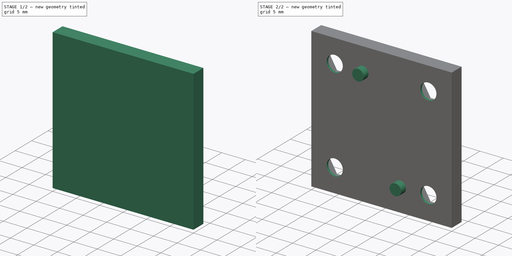
[diagram: build sequence overview — one tinted view per stage of 2, left to right]
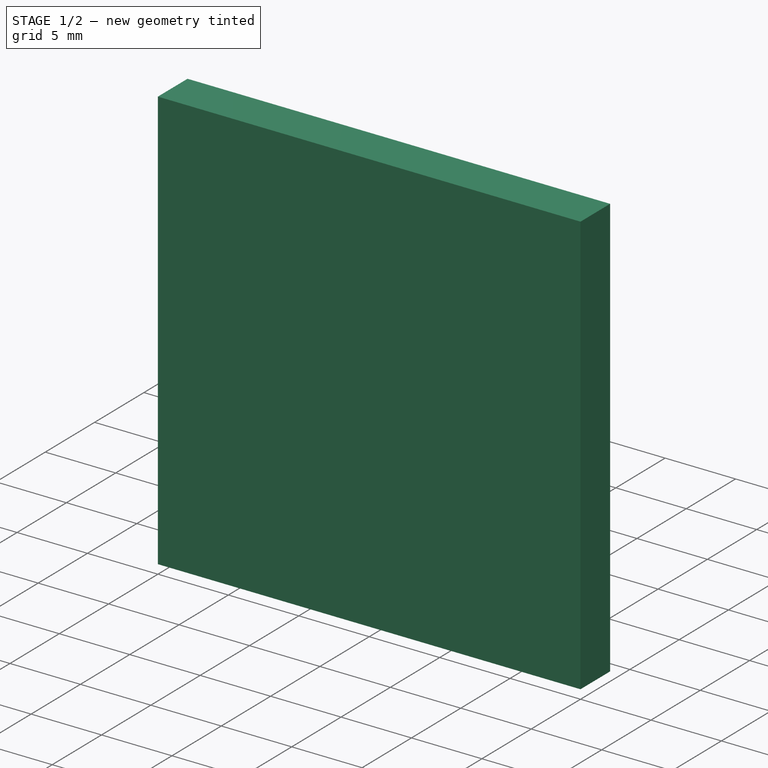
[diagram: stage 1 of 2 — iso view after this stage's code; geometry added in this stage tinted green]
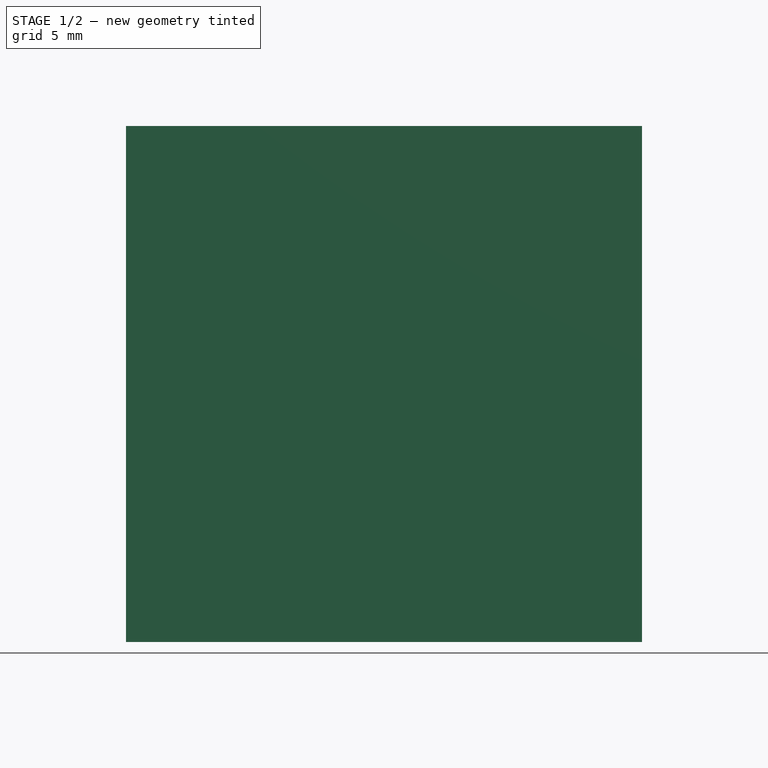
[diagram: stage 1 of 2 — front view after this stage's code; geometry added in this stage tinted green]
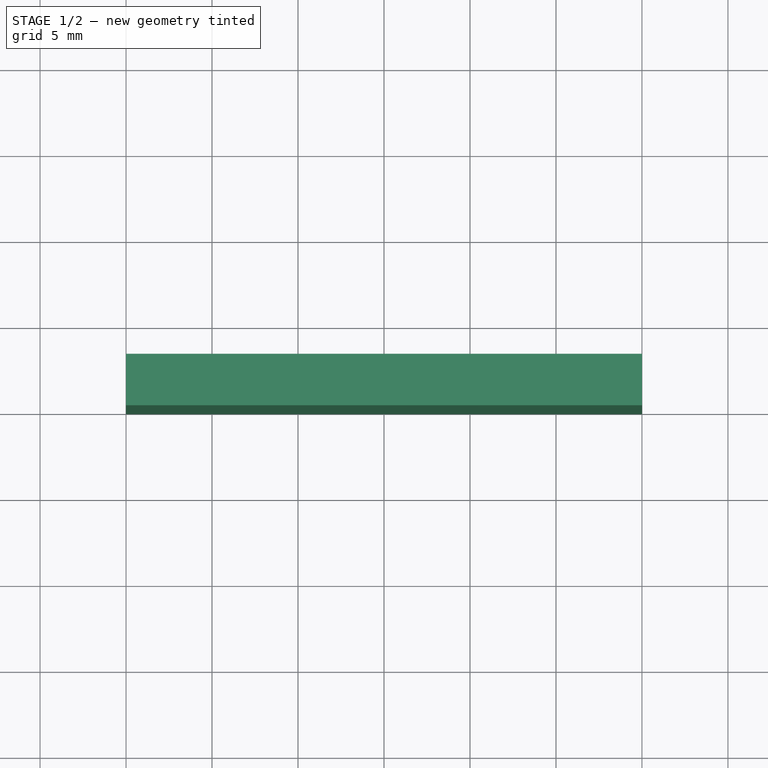
[diagram: stage 1 of 2 — top view after this stage's code; geometry added in this stage tinted green]
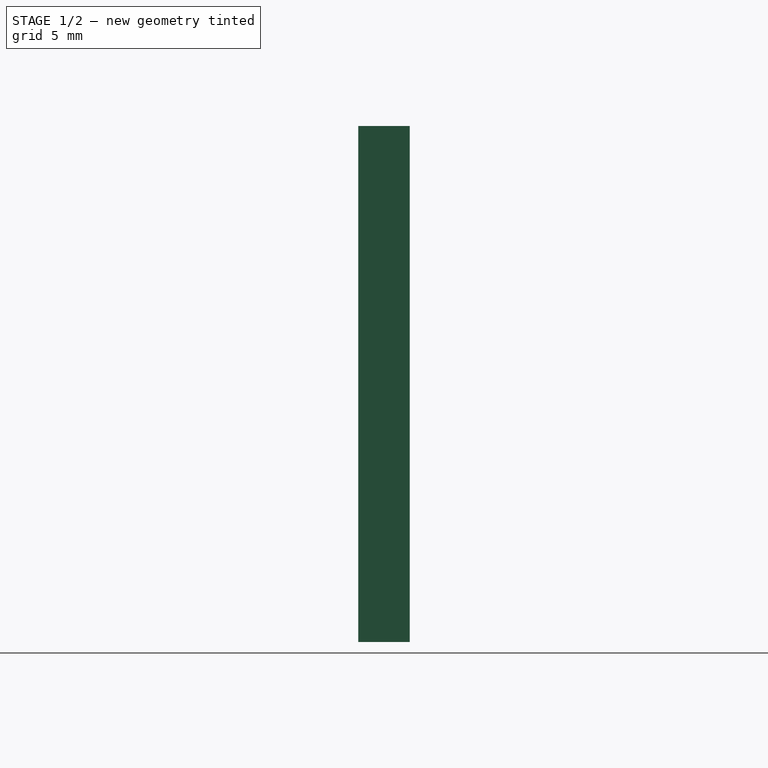
[diagram: stage 1 of 2 — right view after this stage's code; geometry added in this stage tinted green]
FCSTD DOCUMENT  (FreeCAD 0.18.4R)
Label: backplate
License: All rights reserved
LicenseURL: http://en.wikipedia.org/wiki/All_rights_reserved
objects: Sketcher::SketchObject×4, PartDesign::Pad×2, PartDesign::Pocket×2, PartDesign::Body×1
note: 13 computed .brp shape members not serialized (recipe doc carries the construction recipe); baked Part::Feature solids carry a one-line shape summary decoded from their .brp

FEATURE [Sketcher::SketchObject] Sketch
  MapMode = 5
  Placement = pos=(0,0,0) rot=(1,0,0;1.5708rad)
  Support = -> [XZ_Plane]
  sketch-geometry (4):
    g0: LineSegment StartX=-15 StartY=15 StartZ=0 EndX=15 EndY=15 EndZ=0
    g1: LineSegment StartX=15 StartY=15 StartZ=0 EndX=15 EndY=-15 EndZ=0
    g2: LineSegment StartX=15 StartY=-15 StartZ=0 EndX=-15 EndY=-15 EndZ=0
    g3: LineSegment StartX=-15 StartY=-15 StartZ=0 EndX=-15 EndY=15 EndZ=0
  constraints (12):
    c: Coincident(g0,g1)
    c: Coincident(g1,g2)
    c: Coincident(g2,g3)
    c: Coincident(g3,g0)
    c: Horizontal(g0)
    c: Horizontal(g2)
    c: Vertical(g1)
    c: Vertical(g3)
    c: DistanceY(g1,g1) = 30
    c: DistanceX(g0,g0) = 30
    c: Distance(g-1,g1) = 15
    c: Distance(g-1,g0) = 15
FEATURE [PartDesign::Pad] Pad
  Length = 3
  Length2 = 100
  Placement = pos=(0,0,0) rot=(1,0,0;1.5708rad)
  Profile = -> Sketch
  Reversed = true
  Type = 0
FEATURE [Sketcher::SketchObject] Sketch001
  MapMode = 5
  Placement = pos=(0,3,-2e-15) rot=(-1,0,0;1.5708rad)
  Support = -> [Pad]
  sketch-geometry (28):
    g0: LineSegment StartX=-11.6166 StartY=7.2 StartZ=0 EndX=-8.38342 EndY=7.2 EndZ=0
    g1: LineSegment StartX=-8.38342 StartY=7.2 StartZ=0 EndX=-6.76684 EndY=10 EndZ=0
    g2: LineSegment StartX=-6.76684 StartY=10 StartZ=0 EndX=-8.38342 EndY=12.8 EndZ=0
    g3: LineSegment StartX=-8.38342 StartY=12.8 StartZ=0 EndX=-11.6166 EndY=12.8 EndZ=0
    g4: LineSegment StartX=-11.6166 StartY=12.8 StartZ=0 EndX=-13.2332 EndY=10 EndZ=0
    g5: LineSegment StartX=-13.2332 StartY=10 StartZ=0 EndX=-11.6166 EndY=7.2 EndZ=0
    g6: Circle [constr] CenterX=-10 CenterY=10 CenterZ=0 NormalX=0 NormalY=0 NormalZ=1 AngleXU=0 Radius=3.23316
    g7: LineSegment StartX=11.6166 StartY=7.2 StartZ=0 EndX=13.2332 EndY=10 EndZ=0
    g8: LineSegment StartX=13.2332 StartY=10 StartZ=0 EndX=11.6166 EndY=12.8 EndZ=0
    g9: LineSegment StartX=11.6166 StartY=12.8 StartZ=0 EndX=8.38342 EndY=12.8 EndZ=0
    g10: LineSegment StartX=8.38342 StartY=12.8 StartZ=0 EndX=6.76684 EndY=10 EndZ=0
    g11: LineSegment StartX=6.76684 StartY=10 StartZ=0 EndX=8.38342 EndY=7.2 EndZ=0
    g12: LineSegment StartX=8.38342 StartY=7.2 StartZ=0 EndX=11.6166 EndY=7.2 EndZ=0
    g13: Circle [constr] CenterX=10 CenterY=10 CenterZ=0 NormalX=0 NormalY=0 NormalZ=1 AngleXU=0 Radius=3.23316
    g14: LineSegment StartX=11.6166 StartY=-12.8 StartZ=0 EndX=13.2332 EndY=-10 EndZ=0
    g15: LineSegment StartX=13.2332 StartY=-10 StartZ=0 EndX=11.6166 EndY=-7.2 EndZ=0
    g16: LineSegment StartX=11.6166 StartY=-7.2 StartZ=0 EndX=8.38342 EndY=-7.2 EndZ=0
    g17: LineSegment StartX=8.38342 StartY=-7.2 StartZ=0 EndX=6.76684 EndY=-10 EndZ=0
    g18: LineSegment StartX=6.76684 StartY=-10 StartZ=0 EndX=8.38342 EndY=-12.8 EndZ=0
    g19: LineSegment StartX=8.38342 StartY=-12.8 StartZ=0 EndX=11.6166 EndY=-12.8 EndZ=0
    g20: Circle [constr] CenterX=10 CenterY=-10 CenterZ=0 NormalX=0 NormalY=0 NormalZ=1 AngleXU=0 Radius=3.23316
    g21: LineSegment StartX=-8.38342 StartY=-7.2 StartZ=0 EndX=-11.6166 EndY=-7.2 EndZ=0
    g22: LineSegment StartX=-11.6166 StartY=-7.2 StartZ=0 EndX=-13.2332 EndY=-10 EndZ=0
    g23: LineSegment StartX=-13.2332 StartY=-10 StartZ=0 EndX=-11.6166 EndY=-12.8 EndZ=0
    g24: LineSegment StartX=-11.6166 StartY=-12.8 StartZ=0 EndX=-8.38342 EndY=-12.8 EndZ=0
    g25: LineSegment StartX=-8.38342 StartY=-12.8 StartZ=0 EndX=-6.76684 EndY=-10 EndZ=0
    g26: LineSegment StartX=-6.76684 StartY=-10 StartZ=0 EndX=-8.38342 EndY=-7.2 EndZ=0
    g27: Circle [constr] CenterX=-10 CenterY=-10 CenterZ=0 NormalX=0 NormalY=0 NormalZ=1 AngleXU=0 Radius=3.23316
  constraints (68):
    c: Coincident(g0,g1)
    c: Coincident(g1,g2)
    c: Coincident(g2,g3)
    c: Coincident(g3,g4)
    c: Coincident(g4,g5)
    c: Coincident(g5,g0)
    c: Equal(g0, g1-g5) x5
    c: PointOnObject(g0,g6)
    c: PointOnObject(g1,g6)
    c: PointOnObject(g2,g6)
    c: PointOnObject(g3,g6)
    c: PointOnObject(g4,g6)
    c: PointOnObject(g5,g6)
    c: Parallel(g0,g-1)
    c: DistanceY(g-1,g6) = 10
    c: DistanceX(g-2,g6) = -10
    c: Distance(g2,g4) = 5.6
    c: Coincident(g7,g8)
    c: Coincident(g8,g9)
    c: Coincident(g9,g10)
    c: Coincident(g10,g11)
    c: Coincident(g11,g12)
    c: Coincident(g12,g7)
    c: Equal(g7, g8-g12) x5
    c: PointOnObject(g7,g13)
    c: PointOnObject(g8,g13)
    c: PointOnObject(g9,g13)
    c: PointOnObject(g10,g13)
    c: PointOnObject(g11,g13)
    c: PointOnObject(g12,g13)
    c: Parallel(g12,g-1)
    c: Distance(g10,g8) = 5.6
    c: DistanceX(g-2,g13) = 10
    c: DistanceY(g-1,g13) = 10
    c: Coincident(g14,g15)
    c: Coincident(g15,g16)
    c: Coincident(g16,g17)
    c: Coincident(g17,g18)
    c: Coincident(g18,g19)
    c: Coincident(g19,g14)
    c: Equal(g14, g15-g19) x5
    c: PointOnObject(g14,g20)
    c: PointOnObject(g15,g20)
    c: PointOnObject(g16,g20)
    c: PointOnObject(g17,g20)
    c: PointOnObject(g18,g20)
    c: PointOnObject(g19,g20)
    c: Parallel(g16,g-1)
    c: DistanceY(g-1,g20) = -10
    c: DistanceX(g-2,g20) = 10
    c: Distance(g17,g15) = 5.6
    c: Coincident(g21,g22)
    c: Coincident(g22,g23)
    c: Coincident(g23,g24)
    c: Coincident(g24,g25)
    c: Coincident(g25,g26)
    c: Coincident(g26,g21)
    c: Equal(g21, g22-g26) x5
    c: PointOnObject(g21,g27)
    c: PointOnObject(g22,g27)
    c: PointOnObject(g23,g27)
    c: PointOnObject(g24,g27)
    c: PointOnObject(g25,g27)
    c: PointOnObject(g26,g27)
    c: Parallel(g21,g-1)
    c: DistanceY(g-1,g27) = -10
    c: DistanceX(g-2,g27) = -10
    c: Distance(g22,g21) = 5.6
FEATURE [PartDesign::Pocket] Pocket
  BaseFeature = -> Pad
  Length = 2.5
  Length2 = 100
  Placement = pos=(0,0,0) rot=(1,0,0;1.5708rad)
  Profile = -> Sketch001
  Type = 0
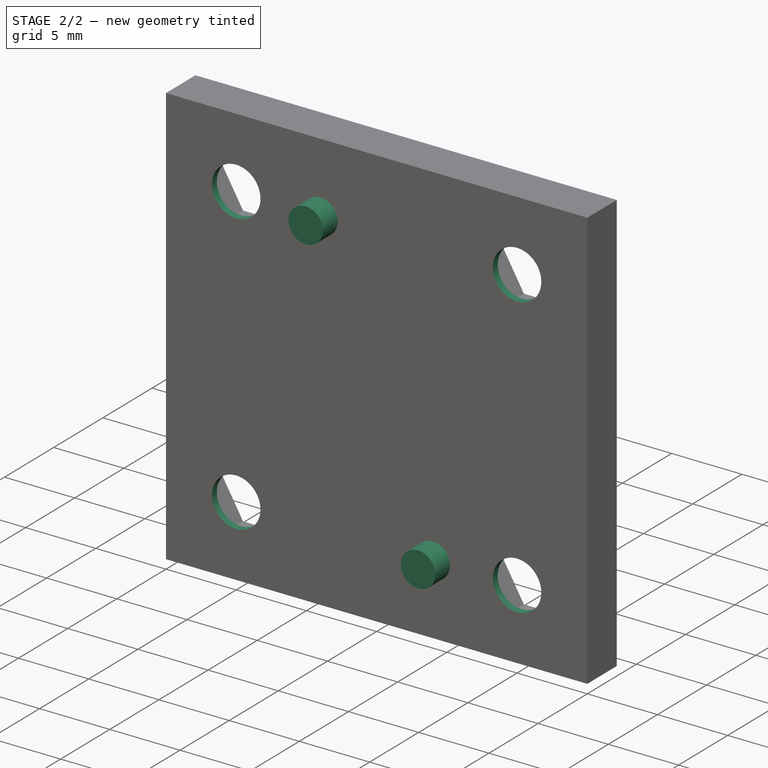
[diagram: stage 2 of 2 — iso view after this stage's code; geometry added in this stage tinted green]
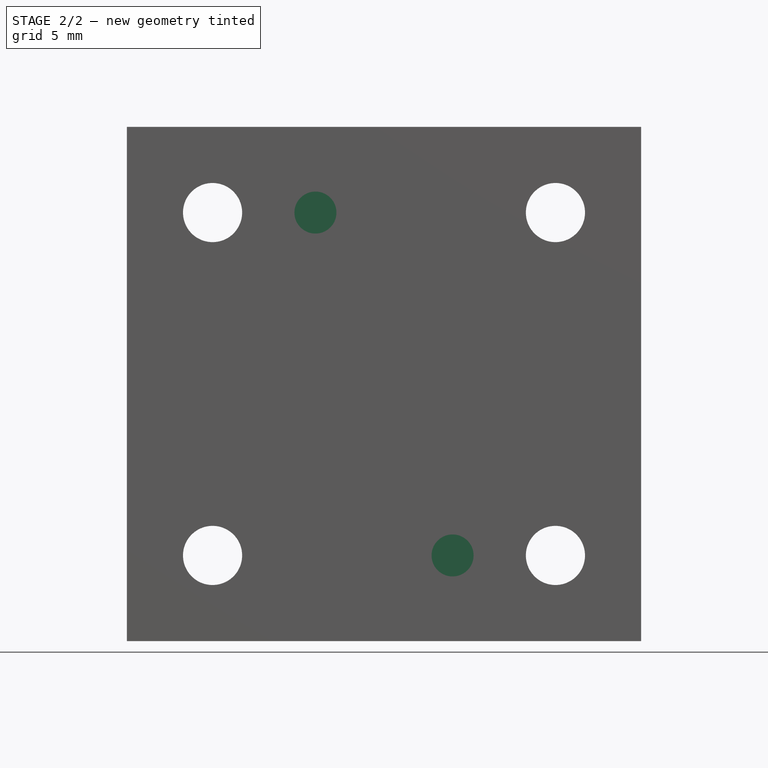
[diagram: stage 2 of 2 — front view after this stage's code; geometry added in this stage tinted green]
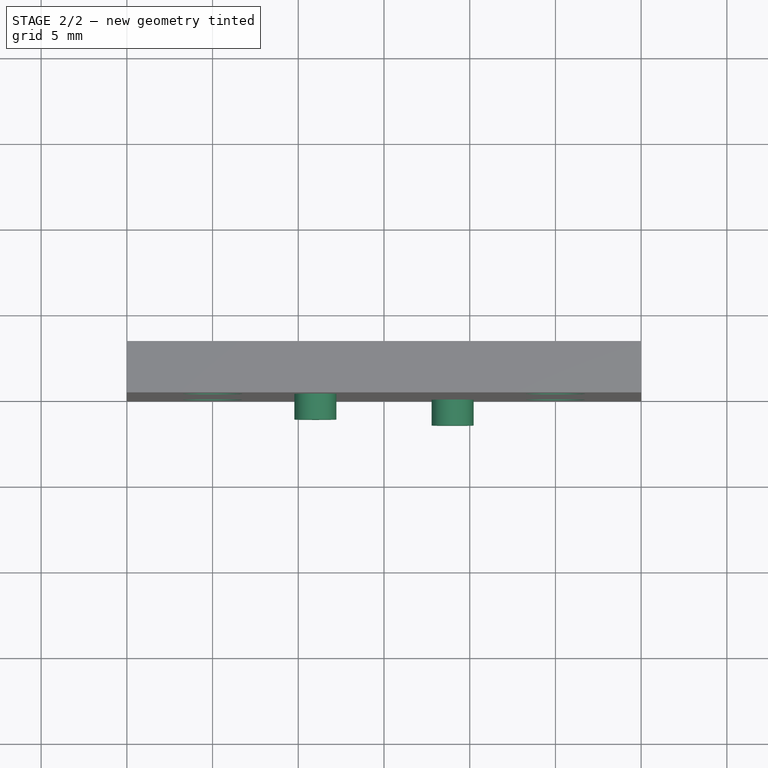
[diagram: stage 2 of 2 — top view after this stage's code; geometry added in this stage tinted green]
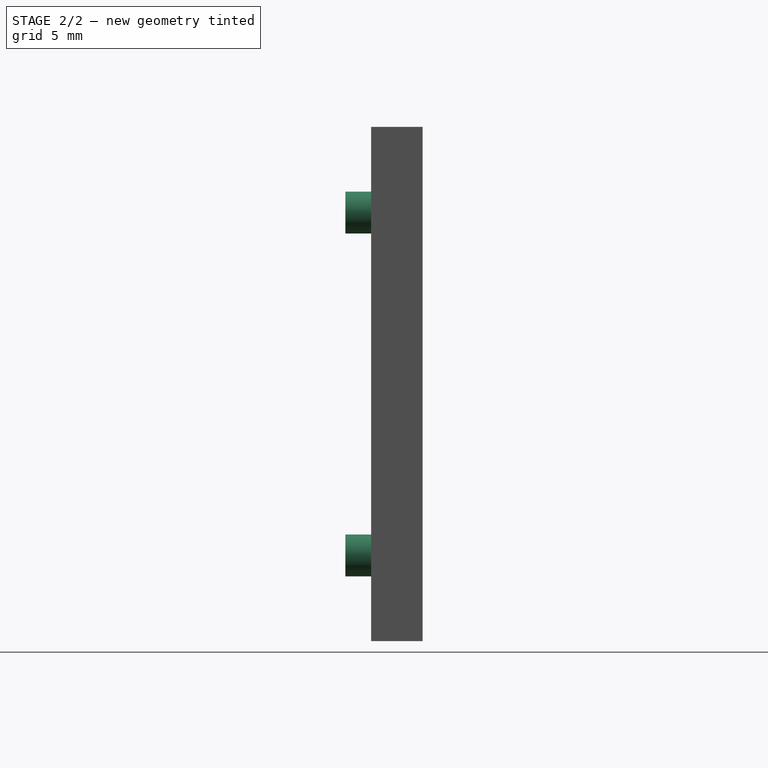
[diagram: stage 2 of 2 — right view after this stage's code; geometry added in this stage tinted green]
FEATURE [Sketcher::SketchObject] Sketch002
  MapMode = 5
  Placement = pos=(0,0.5,-5e-16) rot=(-1,0,0;1.5708rad)
  Support = -> [Pocket]
  sketch-geometry (4):
    g0: Circle CenterX=-10 CenterY=10 CenterZ=0 NormalX=0 NormalY=0 NormalZ=1 AngleXU=0 Radius=1.725
    g1: Circle CenterX=10 CenterY=10 CenterZ=0 NormalX=0 NormalY=0 NormalZ=1 AngleXU=0 Radius=1.725
    g2: Circle CenterX=10 CenterY=-10 CenterZ=0 NormalX=0 NormalY=0 NormalZ=1 AngleXU=0 Radius=1.725
    g3: Circle CenterX=-10 CenterY=-10 CenterZ=0 NormalX=0 NormalY=0 NormalZ=1 AngleXU=0 Radius=1.725
  constraints (12):
    c: DistanceY(g-1,g0) = 10
    c: DistanceX(g-2,g0) = -10
    c: Diameter(g0) = 3.45
    c: DistanceX(g-2,g1) = 10
    c: DistanceY(g-1,g1) = 10
    c: Diameter(g1) = 3.45
    c: DistanceY(g-1,g2) = -10
    c: DistanceX(g-2,g2) = 10
    c: Diameter(g2) = 3.45
    c: DistanceX(g-2,g3) = -10
    c: DistanceY(g-1,g3) = -10
    c: Diameter(g3) = 3.45
FEATURE [PartDesign::Pocket] Pocket001
  BaseFeature = -> Pocket
  Length = 5
  Length2 = 100
  Placement = pos=(0,0,0) rot=(1,0,0;1.5708rad)
  Profile = -> Sketch002
  Type = 0
FEATURE [Sketcher::SketchObject] Sketch003
  MapMode = 5
  Placement = pos=(0,0,0) rot=(1,0,0;1.5708rad)
  Support = -> [Pocket001]
  sketch-geometry (2):
    g0: Circle CenterX=4 CenterY=-10 CenterZ=0 NormalX=0 NormalY=0 NormalZ=1 AngleXU=0 Radius=1.225
    g1: Circle CenterX=-4 CenterY=10 CenterZ=0 NormalX=0 NormalY=0 NormalZ=1 AngleXU=0 Radius=1.225
  constraints (6):
    c: DistanceX(g-2,g0) = 4
    c: DistanceY(g-1,g0) = -10
    c: Diameter(g0) = 2.45
    c: DistanceX(g-2,g1) = -4
    c: DistanceY(g-1,g1) = 10
    c: Diameter(g1) = 2.45
FEATURE [PartDesign::Pad] Pad001
  BaseFeature = -> Pocket001
  Length = 1.5
  Length2 = 100
  Placement = pos=(0,0,0) rot=(1,0,0;1.5708rad)
  Profile = -> Sketch003
  Type = 0
FEATURE [PartDesign::Body] Body
  Group = -> [Sketch,Pad,Sketch001,Pocket,Sketch002,Pocket001,Sketch003,Pad001]
  Origin = -> Origin
  Tip = -> Pad001
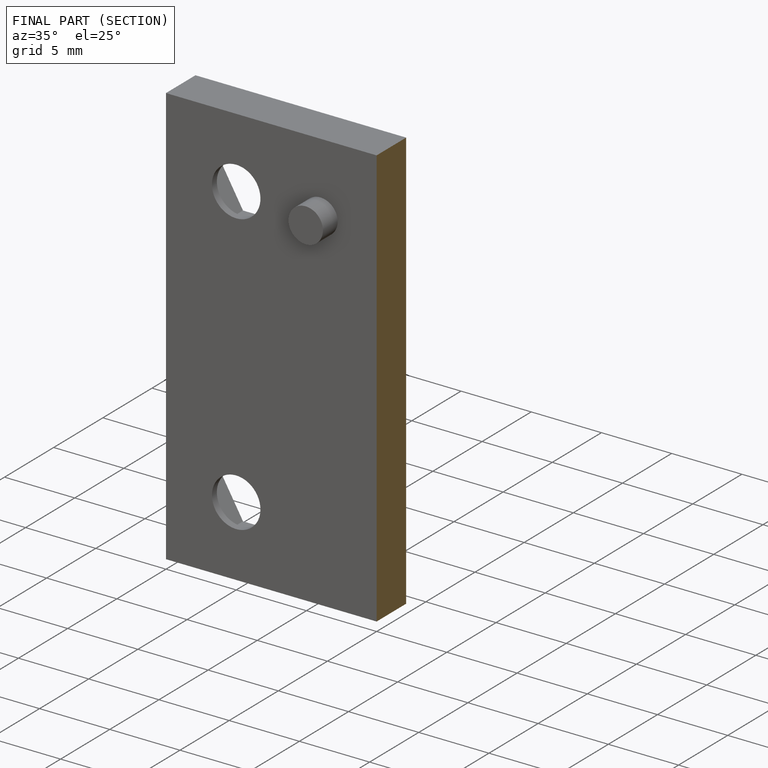
[diagram: finished part — half-section view (interior)]
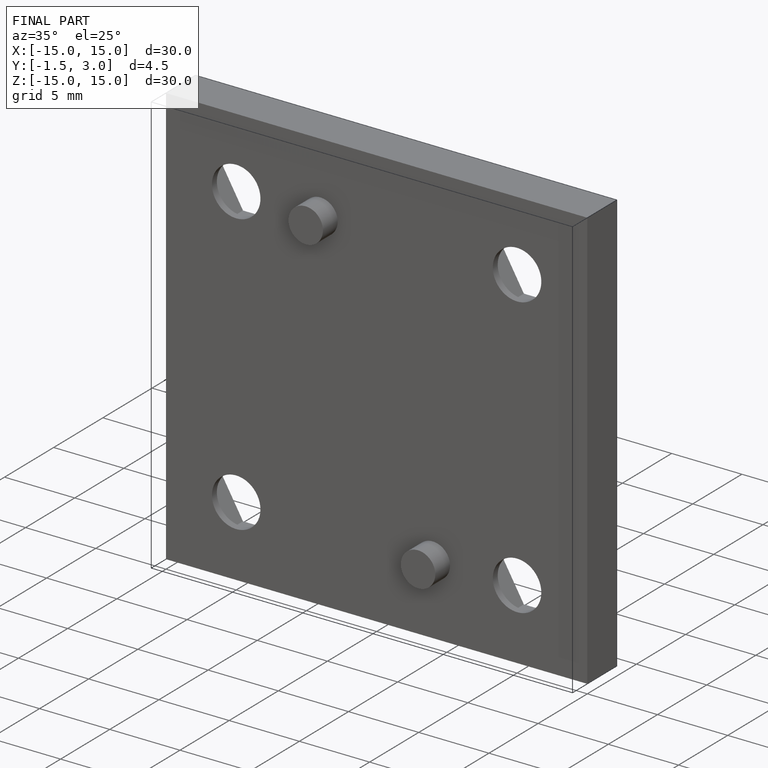
[diagram: finished part — iso view with bounding-box wireframe]
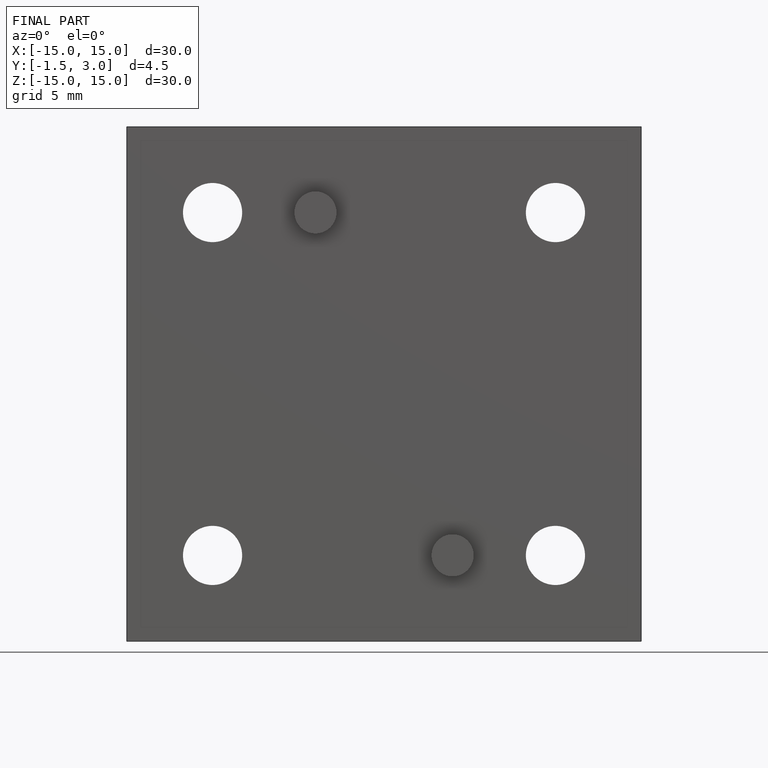
[diagram: finished part — front view with bounding-box wireframe]
